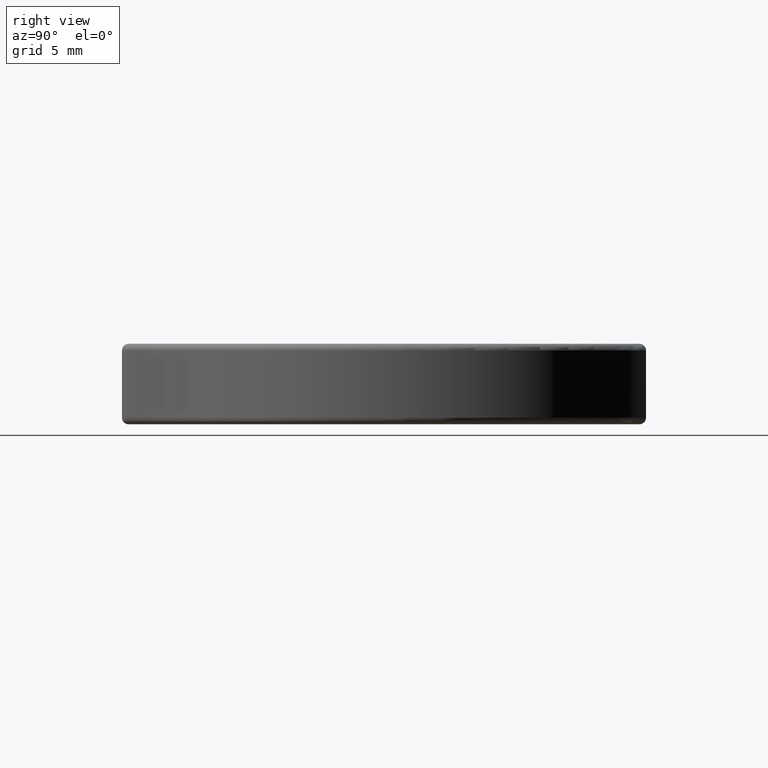
[diagram: clean part render]
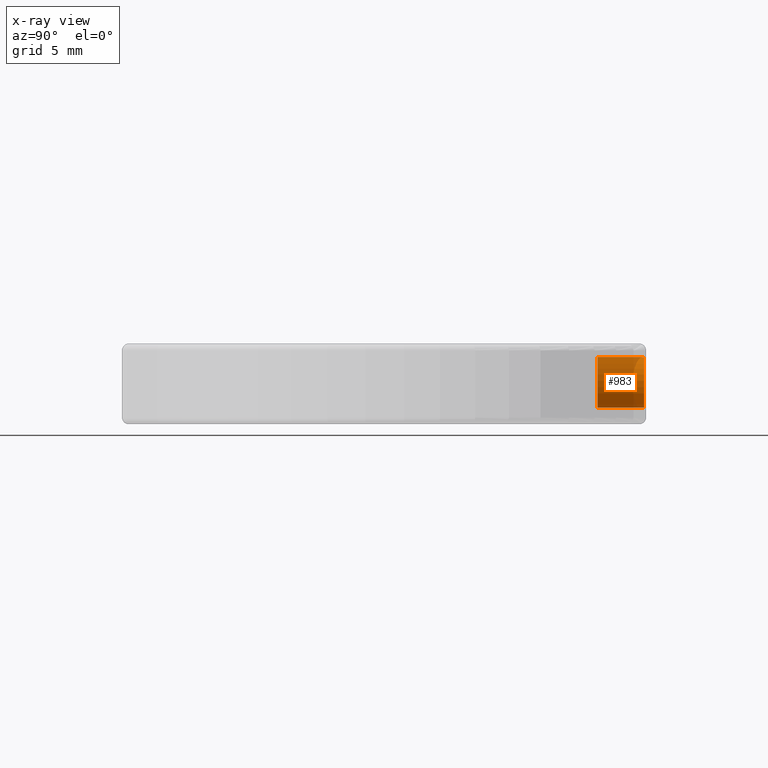
[diagram: x-ray — body ghosted, one internal face saturated and labeled with its STEP entity id]
A machine part, right view, then the same camera in x-ray: the body is ghosted and one INTERNAL B-rep face — a face not visible from any outside direction — is saturated and labeled: STEP entity #983.
In plain terms, the highlighted cylindrical surface (edge-blend (fillet) strip) has radius 2 mm, axis along (0, -1, -0).
Its self-contained STEP definition (entity closure, byte-faithful):
#83 = ORIENTED_EDGE ( 'NONE', *, *, #881, .T. ) ;
#127 = CARTESIAN_POINT ( 'NONE',  ( 2.667861014286736100, 18.70240540961609800, 41.99999999998591700 ) ) ;
#174 = CIRCLE ( 'NONE', #2219, 1.999999999999997100 ) ;
#210 = VERTEX_POINT ( 'NONE', #1288 ) ;
#241 = VECTOR ( 'NONE', #2061, 1000.000000000000000 ) ;
#270 = VECTOR ( 'NONE', #1519, 1000.000000000000000 ) ;
#321 = CARTESIAN_POINT ( 'NONE',  ( 1.737722101518769600, 18.70240540961609800, 43.77054839044431100 ) ) ;
#372 = EDGE_CURVE ( 'NONE', #2633, #210, #1967, .T. ) ;
#381 = EDGE_CURVE ( 'NONE', #210, #2616, #1530, .T. ) ;
#530 = AXIS2_PLACEMENT_3D ( 'NONE', #2281, #1830, #1416 ) ;
#532 = CARTESIAN_POINT ( 'NONE',  ( 1.737722101696676200, 16.97740540961610000, 43.77054839010566000 ) ) ;
#672 = FACE_OUTER_BOUND ( 'NONE', #2777, .T. ) ;
#704 = LINE ( 'NONE', #1961, #270 ) ;
#784 = CARTESIAN_POINT ( 'NONE',  ( 2.667861014286736900, 16.97740540961610000, 41.99999999998591700 ) ) ;
#881 = EDGE_CURVE ( 'NONE', #2616, #1396, #174, .T. ) ;
#982 = DIRECTION ( 'NONE',  ( 6.122959000000010400E-016, -1.000000000000000000, -9.656459427881356900E-031 ) ) ;
#983 = ADVANCED_FACE ( 'NONE', ( #672 ), #1494, .T. ) ;
#1049 = ORIENTED_EDGE ( 'NONE', *, *, #1116, .F. ) ;
#1116 = EDGE_CURVE ( 'NONE', #2633, #1396, #704, .T. ) ;
#1129 = ORIENTED_EDGE ( 'NONE', *, *, #372, .T. ) ;
#1288 = CARTESIAN_POINT ( 'NONE',  ( 1.737722101549688400, 20.42740540961609600, 43.77054839038546400 ) ) ;
#1396 = VERTEX_POINT ( 'NONE', #1598 ) ;
#1416 = DIRECTION ( 'NONE',  ( 0.4650694563839845600, 0.0000000000000000000, -0.8852741952291984800 ) ) ;
#1442 = DIRECTION ( 'NONE',  ( 0.4650694563839807800, 0.0000000000000000000, -0.8852741952292005900 ) ) ;
#1494 = CYLINDRICAL_SURFACE ( 'NONE', #1919, 1.999999999999994000 ) ;
#1519 = DIRECTION ( 'NONE',  ( 6.122959000000010400E-016, -1.000000000000000000, -9.656459427881356900E-031 ) ) ;
#1530 = LINE ( 'NONE', #321, #241 ) ;
#1549 = ORIENTED_EDGE ( 'NONE', *, *, #381, .T. ) ;
#1598 = CARTESIAN_POINT ( 'NONE',  ( 3.597999926876798100, 16.97740540961610000, 40.22945160986616700 ) ) ;
#1633 = DIRECTION ( 'NONE',  ( -6.122959000000010400E-016, 1.000000000000000000, 9.656459427881356900E-031 ) ) ;
#1830 = DIRECTION ( 'NONE',  ( 6.122959000000010400E-016, -1.000000000000000000, -9.656459427881356900E-031 ) ) ;
#1919 = AXIS2_PLACEMENT_3D ( 'NONE', #127, #982, #2757 ) ;
#1961 = CARTESIAN_POINT ( 'NONE',  ( 3.597999927054702100, 18.70240540961609800, 40.22945160952752300 ) ) ;
#1967 = CIRCLE ( 'NONE', #530, 1.999999999999994000 ) ;
#2061 = DIRECTION ( 'NONE',  ( 6.122959000000010400E-016, -1.000000000000000000, -9.656459427881356900E-031 ) ) ;
#2219 = AXIS2_PLACEMENT_3D ( 'NONE', #784, #1633, #1442 ) ;
#2279 = CARTESIAN_POINT ( 'NONE',  ( 3.597999927023788600, 20.42740540961609600, 40.22945160958637700 ) ) ;
#2281 = CARTESIAN_POINT ( 'NONE',  ( 2.667861014286738700, 20.42740540961609600, 41.99999999998591700 ) ) ;
#2616 = VERTEX_POINT ( 'NONE', #532 ) ;
#2633 = VERTEX_POINT ( 'NONE', #2279 ) ;
#2757 = DIRECTION ( 'NONE',  ( 0.4650694563839845600, 0.0000000000000000000, -0.8852741952291984800 ) ) ;
#2777 = EDGE_LOOP ( 'NONE', ( #1129, #1549, #83, #1049 ) ) ;